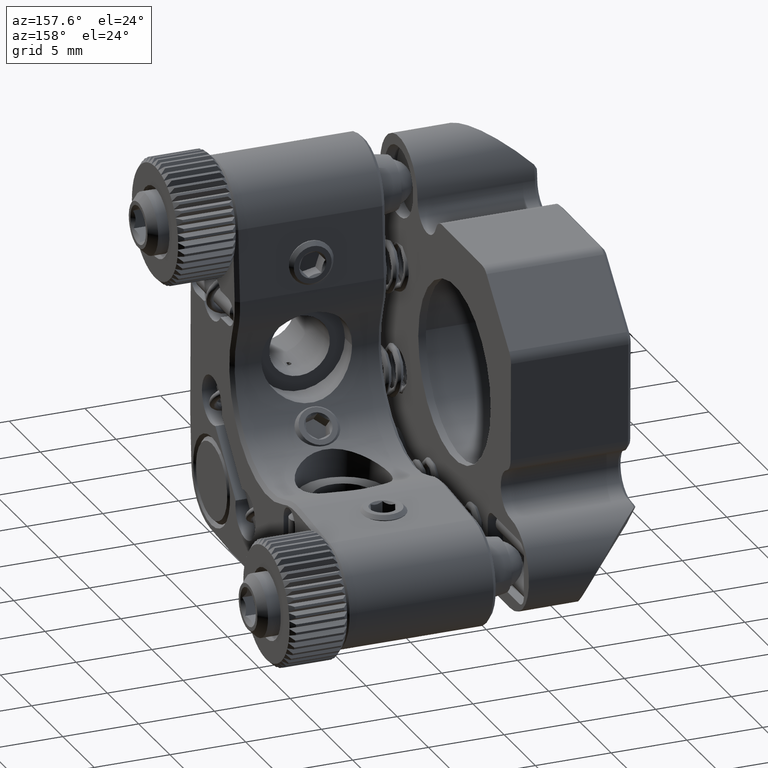
[diagram: clean part render]
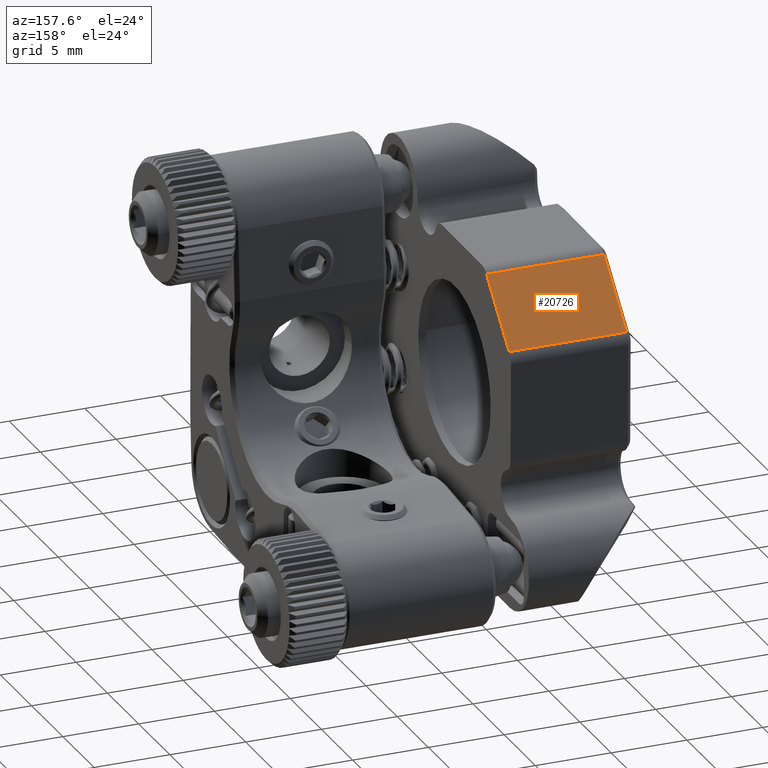
[diagram: same view with one face highlighted and labeled with its STEP entity id]
A machine part, auxiliary view. The second image highlights one B-rep face of the part: STEP entity #20726.
In plain terms, the highlighted planar face has unit normal (-0, -0.7135, -0.7006).
Its self-contained STEP definition (entity closure, byte-faithful):
#203 = VECTOR ( 'NONE', #4585, 1000.000000000000000 ) ;
#327 = VECTOR ( 'NONE', #33679, 1000.000000000000114 ) ;
#589 = CARTESIAN_POINT ( 'NONE',  ( -17.15289954210474477, 11.16290320958987259, 30.00579780461732682 ) ) ;
#2050 = ORIENTED_EDGE ( 'NONE', *, *, #9958, .F. ) ;
#2146 = EDGE_CURVE ( 'NONE', #28568, #25894, #7096, .T. ) ;
#2162 = VECTOR ( 'NONE', #12879, 1000.000000000000227 ) ;
#2398 = LINE ( 'NONE', #23345, #2162 ) ;
#2612 = CARTESIAN_POINT ( 'NONE',  ( -17.15289954210474477, 7.249373825532912541, 33.99143425152242770 ) ) ;
#2712 = CARTESIAN_POINT ( 'NONE',  ( -11.15289954210474477, 7.249373825533035998, 33.99143425152230691 ) ) ;
#3309 = CARTESIAN_POINT ( 'NONE',  ( -17.15289954210474477, 10.87269574002032968, 30.30135236786975383 ) ) ;
#4240 = CARTESIAN_POINT ( 'NONE',  ( -18.90289954210474477, 7.249373825532861026, 33.99143425152250586 ) ) ;
#4585 = DIRECTION ( 'NONE',  ( -1.000000000000000000, 3.205433079703501203E-43, 4.277384575722954674E-43 ) ) ;
#7096 = LINE ( 'NONE', #9736, #327 ) ;
#7864 = DIRECTION ( 'NONE',  ( -5.284011743765362010E-43, -0.7135318350263406550, -0.7006228089378357948 ) ) ;
#9736 = CARTESIAN_POINT ( 'NONE',  ( -11.15289954210474477, 10.87269574002007566, 30.30135236786999542 ) ) ;
#9958 = EDGE_CURVE ( 'NONE', #34909, #28568, #30815, .T. ) ;
#11994 = VERTEX_POINT ( 'NONE', #4240 ) ;
#12186 = DIRECTION ( 'NONE',  ( 1.000000000000000000, -3.205433079703501203E-43, -4.277384575722954674E-43 ) ) ;
#12879 = DIRECTION ( 'NONE',  ( -8.062505372648398579E-44, 0.7006228089378356838, -0.7135318350263405440 ) ) ;
#13296 = CARTESIAN_POINT ( 'NONE',  ( -11.15289954210474477, 10.87269574002007566, 30.30135236787000252 ) ) ;
#14065 = FACE_OUTER_BOUND ( 'NONE', #16541, .T. ) ;
#15701 = ORIENTED_EDGE ( 'NONE', *, *, #30944, .F. ) ;
#16541 = EDGE_LOOP ( 'NONE', ( #15701, #22338, #32700, #2050 ) ) ;
#19739 = EDGE_CURVE ( 'NONE', #25894, #11994, #23905, .T. ) ;
#20726 = ADVANCED_FACE ( 'NONE', ( #14065 ), #24872, .F. ) ;
#22338 = ORIENTED_EDGE ( 'NONE', *, *, #19739, .F. ) ;
#22822 = AXIS2_PLACEMENT_3D ( 'NONE', #589, #7864, #29494 ) ;
#23345 = CARTESIAN_POINT ( 'NONE',  ( -18.90289954210474832, 11.16290320958987259, 30.00579780461732682 ) ) ;
#23905 = LINE ( 'NONE', #2612, #203 ) ;
#24872 = PLANE ( 'NONE',  #22822 ) ;
#25894 = VERTEX_POINT ( 'NONE', #2712 ) ;
#28568 = VERTEX_POINT ( 'NONE', #13296 ) ;
#29494 = DIRECTION ( 'NONE',  ( -8.062505372648398579E-44, 0.7006228089378356838, -0.7135318350263405440 ) ) ;
#30815 = LINE ( 'NONE', #3309, #32107 ) ;
#30944 = EDGE_CURVE ( 'NONE', #11994, #34909, #2398, .T. ) ;
#32107 = VECTOR ( 'NONE', #12186, 1000.000000000000000 ) ;
#32700 = ORIENTED_EDGE ( 'NONE', *, *, #2146, .F. ) ;
#33427 = CARTESIAN_POINT ( 'NONE',  ( -18.90289954210474477, 10.87269574002033856, 30.30135236786975739 ) ) ;
#33679 = DIRECTION ( 'NONE',  ( 8.062505372648382648E-44, -0.7006228089378341295, 0.7135318350263422094 ) ) ;
#34909 = VERTEX_POINT ( 'NONE', #33427 ) ;